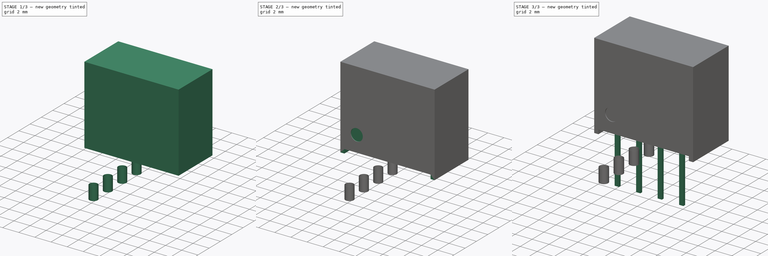
[diagram: build sequence overview — one tinted view per stage of 3, left to right]
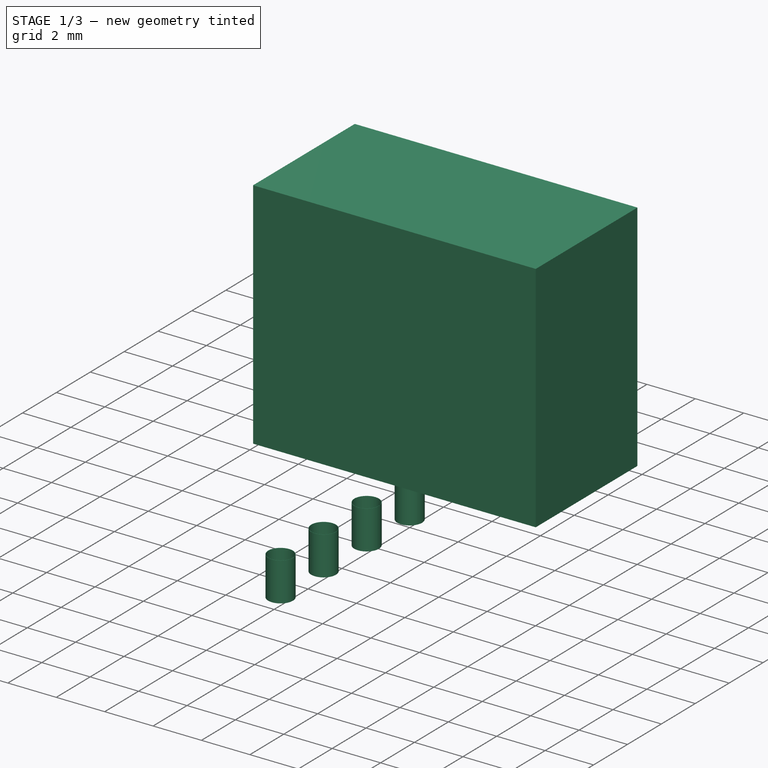
[diagram: stage 1 of 3 — iso view after this stage's code; geometry added in this stage tinted green]
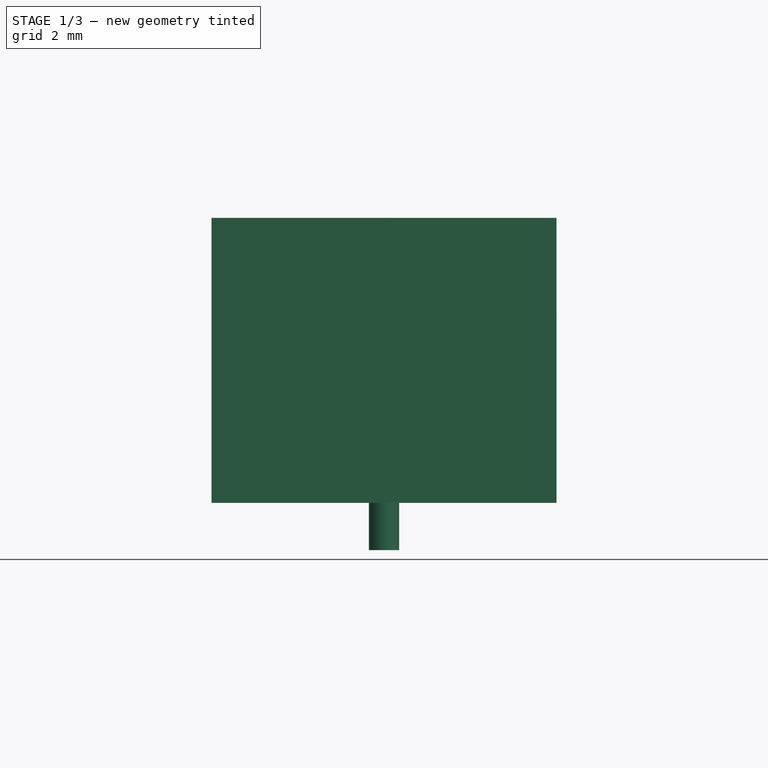
[diagram: stage 1 of 3 — front view after this stage's code; geometry added in this stage tinted green]
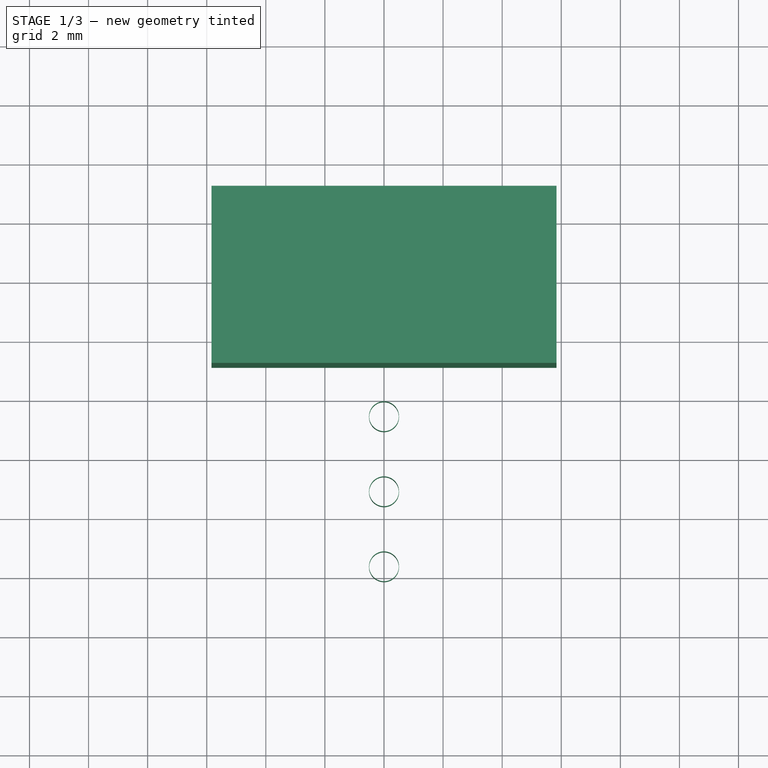
[diagram: stage 1 of 3 — top view after this stage's code; geometry added in this stage tinted green]
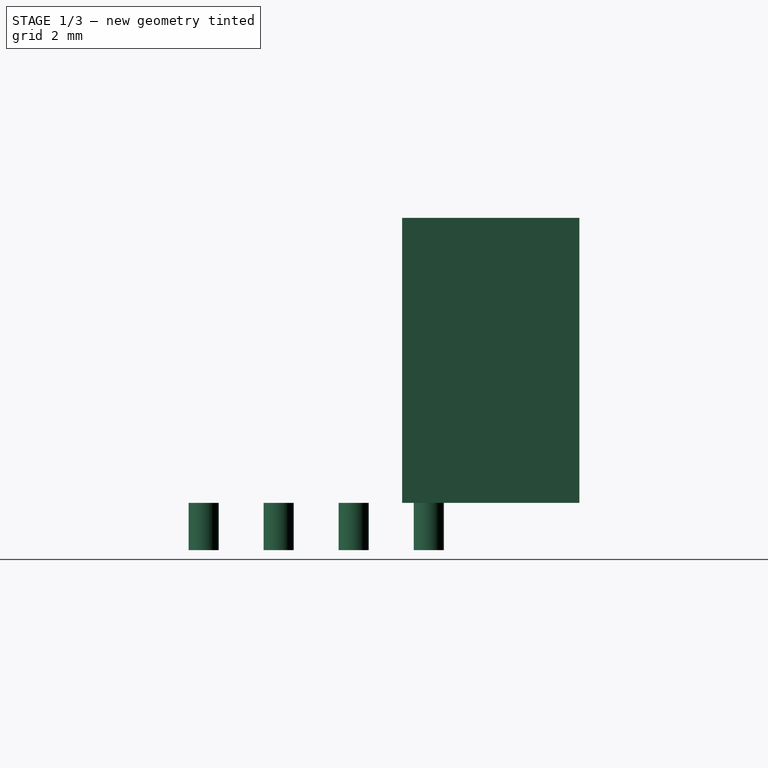
[diagram: stage 1 of 3 — right view after this stage's code; geometry added in this stage tinted green]
FCSTD DOCUMENT  (FreeCAD 1.0R39109 (Git))
Label: B0505S-1W
License: All rights reserved
LicenseURL: http://en.wikipedia.org/wiki/All_rights_reserved
objects: Part::Feature×11, Sketcher::SketchObject×7, PartDesign::Pad×3, PartDesign::Mirrored×1, PartDesign::Pocket×1, PartDesign::LinearPattern×1, PartDesign::Body×1, Part::Compound×1, App::DocumentObjectGroup×1
note: 43 computed .brp shape members not serialized (recipe doc carries the construction recipe); baked Part::Feature solids carry a one-line shape summary decoded from their .brp

FEATURE [Sketcher::SketchObject] Sketch
  ArcFitTolerance = 1e-06
  AttachmentSupport = -> [XZ_Plane]
  FullyConstrained = true
  MakeInternals = false
  MapMode = 5
  Placement = pos=(0,0,0) rot=(1,0,0;1.5708rad)
  sketch-geometry (4):
    g0: LineSegment StartX=-5.84 StartY=0 StartZ=0 EndX=5.84 EndY=0 EndZ=0
    g1: LineSegment StartX=5.84 StartY=0 StartZ=0 EndX=5.84 EndY=9.65 EndZ=0
    g2: LineSegment StartX=5.84 StartY=9.65 StartZ=0 EndX=-5.84 EndY=9.65 EndZ=0
    g3: LineSegment StartX=-5.84 StartY=9.65 StartZ=0 EndX=-5.84 EndY=0 EndZ=0
  constraints (11):
    c: Coincident(g0,g1)
    c: Coincident(g1,g2)
    c: Coincident(g2,g3)
    c: Coincident(g3,g0)
    c: Horizontal(g0)
    c: Vertical(g1)
    c: Vertical(g3)
    c: PointOnObject(g0,g-1)
    c: DistanceX(g2,g2) = 11.68
    c: DistanceY(g3,g3) = 9.65
    c: Symmetric(g2,g1,g-2)
FEATURE [PartDesign::Pad] Pad
  Direction = (0,-1,2e-16)
  Length = 0.9
  Length2 = 5.1
  Placement = pos=(0,0,0) rot=(1,0,0;1.5708rad)
  Profile = -> Sketch
  ReferenceAxis = -> Sketch [N_Axis]
  Refine = true
  Suppressed = false
  Type = 4
  expr: Length2 = 6 - 0.9
FEATURE [PartDesign::Body] Body
  AllowCompound = false
  Group = -> [Sketch,Pad,Sketch001,Pad001,Mirrored,Sketch002,Pocket,Sketch003,Pad002,LinearPattern]
  Origin = -> Origin
  Placement = pos=(2.1,2.1,0) rot=(0,0,1;1.5708rad)
  Tip = -> LinearPattern
FEATURE [Part::Feature] anr_  label="drill_000"
  shape: bbox 1.02 x 1.02 x 1.6 mm, 4 faces (baked)
FEATURE [Part::Feature] anr_001  label="drill_001"
  shape: bbox 1.02 x 1.02 x 1.6 mm, 4 faces (baked)
FEATURE [Part::Feature] anr_002  label="drill_002"
  shape: bbox 1.02 x 1.02 x 1.6 mm, 4 faces (baked)
FEATURE [Part::Feature] anr_003  label="drill_003"
  shape: bbox 1.02 x 1.02 x 1.6 mm, 4 faces (baked)
FEATURE [Part::Compound] annulars  label="TH-Drills"
  Links = -> [anr_,anr_001,anr_002,anr_003]
FEATURE [Part::Feature] Shape001  label="topPads"
  Placement = pos=(0,0,-0.01) rot=(0,0,1;0rad)
  shape: bbox 1.5 x 9.12 x 0.01 mm, 23 faces, 4 solids (baked)
FEATURE [Part::Feature] Shape002  label="btmPads"
  Placement = pos=(0,0,-1.6) rot=(0,0,1;0rad)
  shape: bbox 1.5 x 9.12 x 0.01 mm, 23 faces, 4 solids (baked)
FEATURE [Part::Feature] Shape  label="F.SilkS_outline_"
  Placement = pos=(0,0,0.01) rot=(0,0,1;0rad)
  shape: bbox 6.74 x 12.42 x 2e-07 mm, 0 faces, 0 solids (baked)
FEATURE [Sketcher::SketchObject] _F_SilkS__sketch  label="F.SilkS_"
  ArcFitTolerance = 1e-06
  FullyConstrained = false
  MakeInternals = false
  Placement = pos=(0,0,0.01) rot=(0,0,1;0rad)
  sketch-geometry (6):
    g0: LineSegment StartX=-1.4 StartY=2.53 StartZ=0 EndX=0.6 EndY=2.53 EndZ=0
    g1: LineSegment StartX=-1.4 StartY=0.53 StartZ=0 EndX=-1.4 EndY=2.53 EndZ=0
    g2: LineSegment StartX=-1.02 StartY=2.15 StartZ=0 EndX=-1.02 EndY=-9.77 EndZ=0
    g3: LineSegment StartX=-1.02 StartY=2.15 StartZ=0 EndX=5.22 EndY=2.15 EndZ=0
    g4: LineSegment StartX=-1.02 StartY=-9.77 StartZ=0 EndX=5.22 EndY=-9.77 EndZ=0
    g5: LineSegment StartX=5.22 StartY=2.15 StartZ=0 EndX=5.22 EndY=-9.77 EndZ=0
FEATURE [Part::Feature] Shape003  label="F.CrtYd_outline_"
  Placement = pos=(0,0,0.01) rot=(0,0,1;0rad)
  shape: bbox 6.55 x 12.23 x 2e-07 mm, 0 faces, 0 solids (baked)
FEATURE [Sketcher::SketchObject] _F_CrtYd__sketch  label="F.CrtYd_"
  ArcFitTolerance = 1e-06
  FullyConstrained = false
  MakeInternals = false
  Placement = pos=(0,0,0.01) rot=(0,0,1;0rad)
  sketch-geometry (4):
    g0: LineSegment StartX=-1.15 StartY=2.28 StartZ=0 EndX=-1.15 EndY=-9.9 EndZ=0
    g1: LineSegment StartX=-1.15 StartY=2.28 StartZ=0 EndX=5.35 EndY=2.28 EndZ=0
    g2: LineSegment StartX=-1.15 StartY=-9.9 StartZ=0 EndX=5.35 EndY=-9.9 EndZ=0
    g3: LineSegment StartX=5.35 StartY=2.28 StartZ=0 EndX=5.35 EndY=-9.9 EndZ=0
FEATURE [Part::Feature] Shape004  label="F.Fab_outline_"
  Placement = pos=(0,0,0.01) rot=(0,0,1;0rad)
  shape: bbox 6.1 x 11.78 x 2e-07 mm, 0 faces, 0 solids (baked)
FEATURE [Sketcher::SketchObject] _F_Fab__sketch  label="F.Fab_"
  ArcFitTolerance = 1e-06
  FullyConstrained = false
  MakeInternals = false
  Placement = pos=(0,0,0.01) rot=(0,0,1;0rad)
  sketch-geometry (5):
    g0: LineSegment StartX=-0.9 StartY=1.03 StartZ=0 EndX=0.1 EndY=2.03 EndZ=0
    g1: LineSegment StartX=-0.9 StartY=-9.65 StartZ=0 EndX=-0.9 EndY=1.03 EndZ=0
    g2: LineSegment StartX=0.1 StartY=2.03 StartZ=0 EndX=5.1 EndY=2.03 EndZ=0
    g3: LineSegment StartX=5.1 StartY=2.03 StartZ=0 EndX=5.1 EndY=-9.65 EndZ=0
    g4: LineSegment StartX=5.1 StartY=-9.65 StartZ=0 EndX=-0.9 EndY=-9.65 EndZ=0
FEATURE [Part::Feature] PCB
  shape: bbox 10.25 x 18.77 x 1.58 mm, 14 faces (baked)
FEATURE [App::DocumentObjectGroup] Group  label="Converter_DCDC_TRACO_TEA1-xxxx_THT-fp"
  Group = -> [Shape001,Shape002,annulars,_F_SilkS__sketch,Shape,_F_CrtYd__sketch,Shape003,_F_Fab__sketch,Shape004,PCB]
FEATURE [Part::Feature] Shape043  label="B0505S-1W"
  shape: bbox 6 x 11.68 x 15.65 mm, 32 faces (baked)
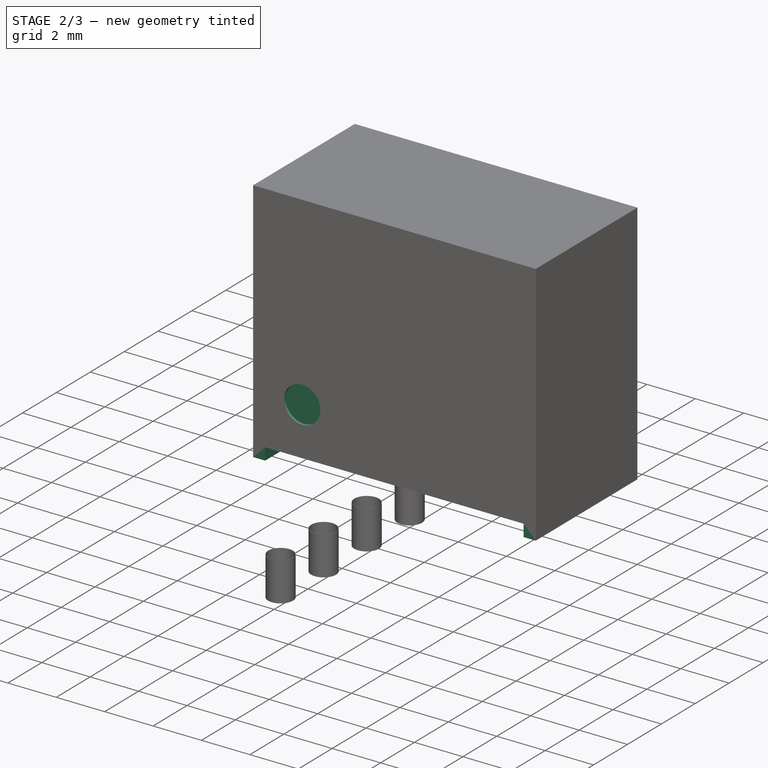
[diagram: stage 2 of 3 — iso view after this stage's code; geometry added in this stage tinted green]
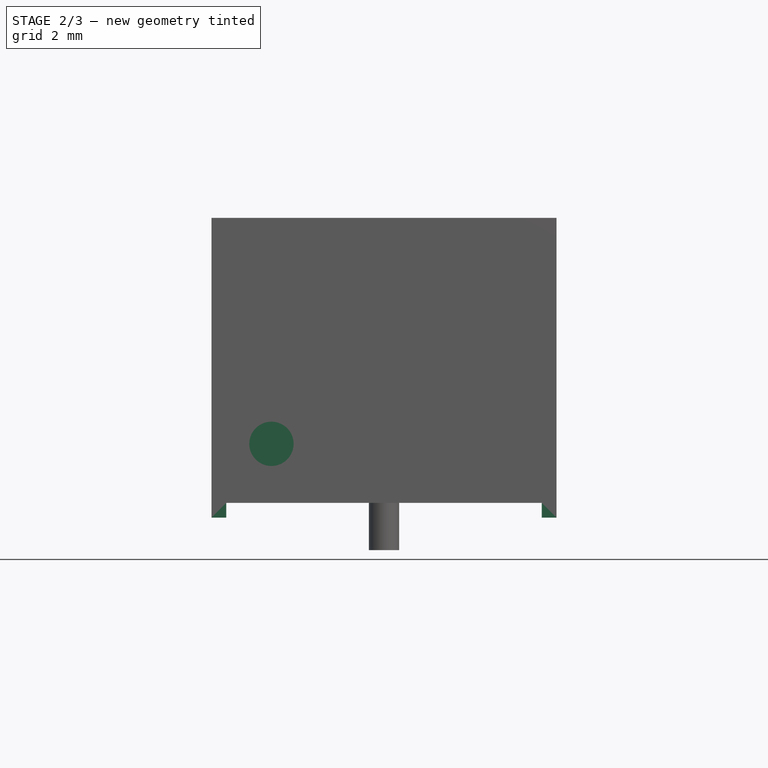
[diagram: stage 2 of 3 — front view after this stage's code; geometry added in this stage tinted green]
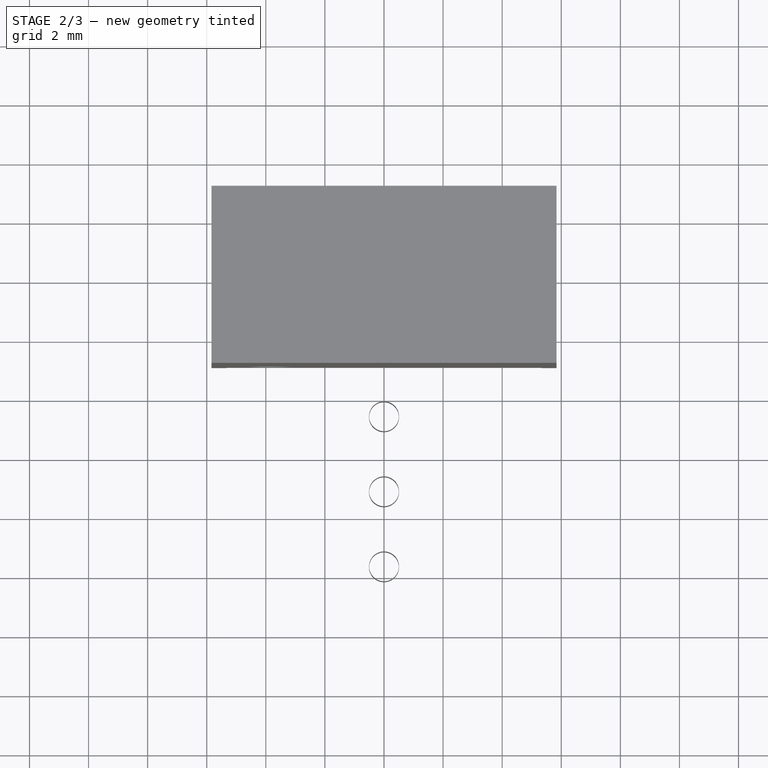
[diagram: stage 2 of 3 — top view after this stage's code; geometry added in this stage tinted green]
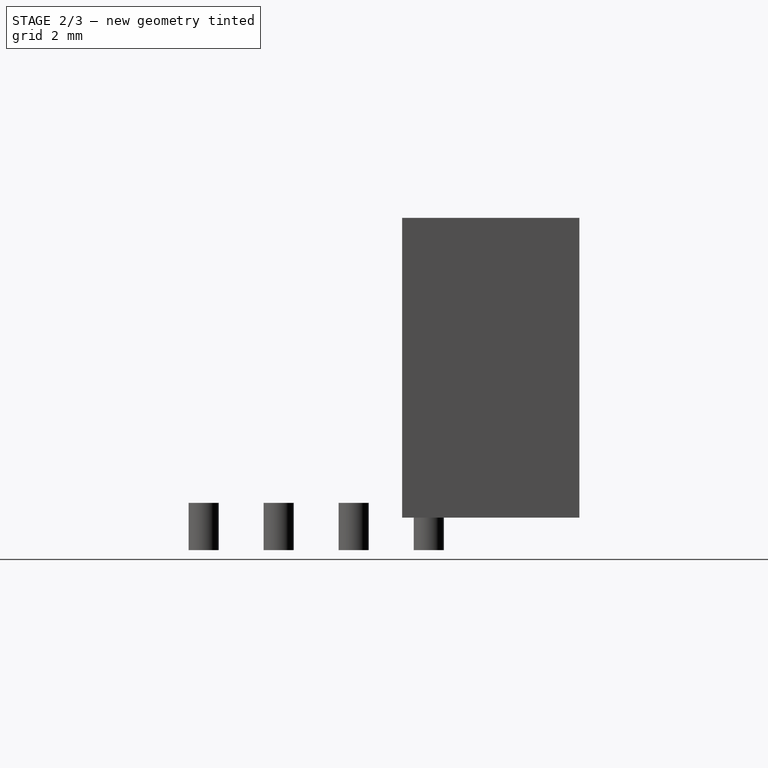
[diagram: stage 2 of 3 — right view after this stage's code; geometry added in this stage tinted green]
FEATURE [Sketcher::SketchObject] Sketch001
  ArcFitTolerance = 1e-06
  AttachmentSupport = -> [Pad]
  ExternalGeometry = -> [Pad]
  FullyConstrained = true
  MakeInternals = false
  MapMode = 5
  Placement = pos=(0,0,0) rot=(1,0,0;3.14159rad)
  sketch-geometry (4):
    g0: LineSegment StartX=-5.84 StartY=0.9 StartZ=0 EndX=-5.84 EndY=-5.1 EndZ=0
    g1: LineSegment StartX=-5.84 StartY=-5.1 StartZ=0 EndX=-5.34 EndY=-5.1 EndZ=0
    g2: LineSegment StartX=-5.34 StartY=-5.1 StartZ=0 EndX=-5.34 EndY=0.9 EndZ=0
    g3: LineSegment StartX=-5.34 StartY=0.9 StartZ=0 EndX=-5.84 EndY=0.9 EndZ=0
  constraints (10):
    c: Coincident(g0,g1)
    c: Coincident(g1,g2)
    c: Coincident(g2,g3)
    c: Coincident(g3,g0)
    c: Vertical(g2)
    c: Horizontal(g1)
    c: Horizontal(g3)
    c: Coincident(g0,g-3)
    c: Coincident(g0,g-3)
    c: DistanceX(g3,g3) = 0.5
FEATURE [PartDesign::Pad] Pad001
  BaseFeature = -> Pad
  Direction = (0,0,-1)
  Length = 0.5
  Length2 = 10
  Placement = pos=(0,0,0) rot=(1,0,0;1.5708rad)
  Profile = -> Sketch001
  ReferenceAxis = -> Sketch001 [N_Axis]
  Refine = true
  Suppressed = false
  Type = 0
FEATURE [PartDesign::Mirrored] Mirrored
  BaseFeature = -> Pad001
  MirrorPlane = -> Sketch001 [V_Axis]
  Originals = -> [Pad001]
  Placement = pos=(0,0,0) rot=(1,0,0;1.5708rad)
  Refine = true
  Suppressed = false
  TransformMode = 0
FEATURE [Sketcher::SketchObject] Sketch002
  ArcFitTolerance = 1e-06
  AttachmentSupport = -> [Mirrored]
  FullyConstrained = true
  MakeInternals = false
  MapMode = 5
  Placement = pos=(0,-0.9,2e-16) rot=(1,0,0;1.5708rad)
  expr: Constraints[2] = 7.62 / 2
  sketch-geometry (1):
    g0: Circle CenterX=-3.81 CenterY=2 CenterZ=0 NormalX=0 NormalY=0 NormalZ=1 AngleXU=0 Radius=0.75
  constraints (3):
    c: Diameter(g0) = 1.5
    c: DistanceY(g-1,g0) = 2
    c: DistanceX(g0,g-1) = 3.81
FEATURE [PartDesign::Pocket] Pocket
  BaseFeature = -> Mirrored
  Direction = (0,1,-2e-16)
  Length = 0.1
  Length2 = 5
  Placement = pos=(0,0,0) rot=(1,0,0;1.5708rad)
  Profile = -> Sketch002
  ReferenceAxis = -> Sketch002 [N_Axis]
  Refine = true
  Suppressed = false
  Type = 0
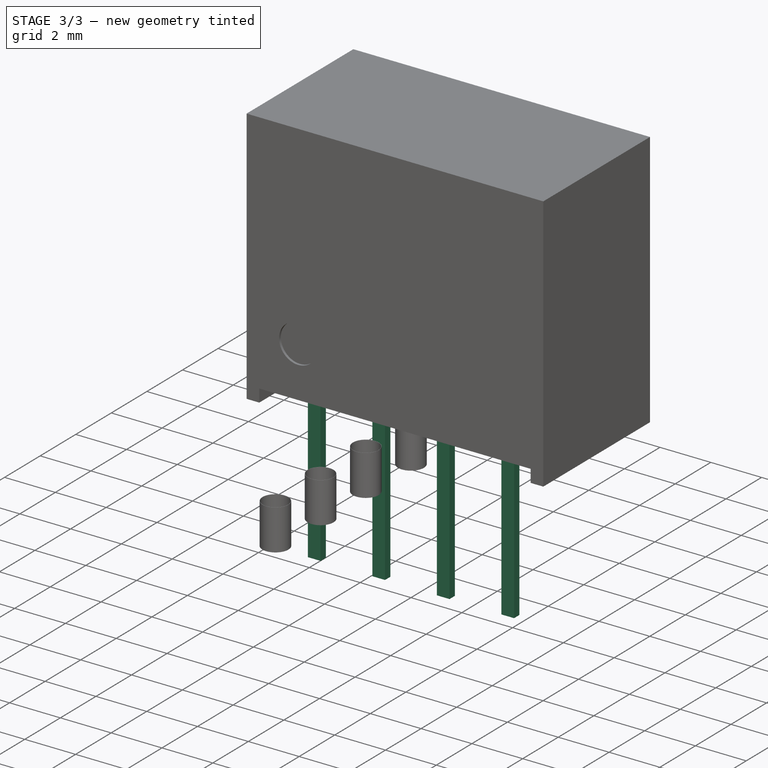
[diagram: stage 3 of 3 — iso view after this stage's code; geometry added in this stage tinted green]
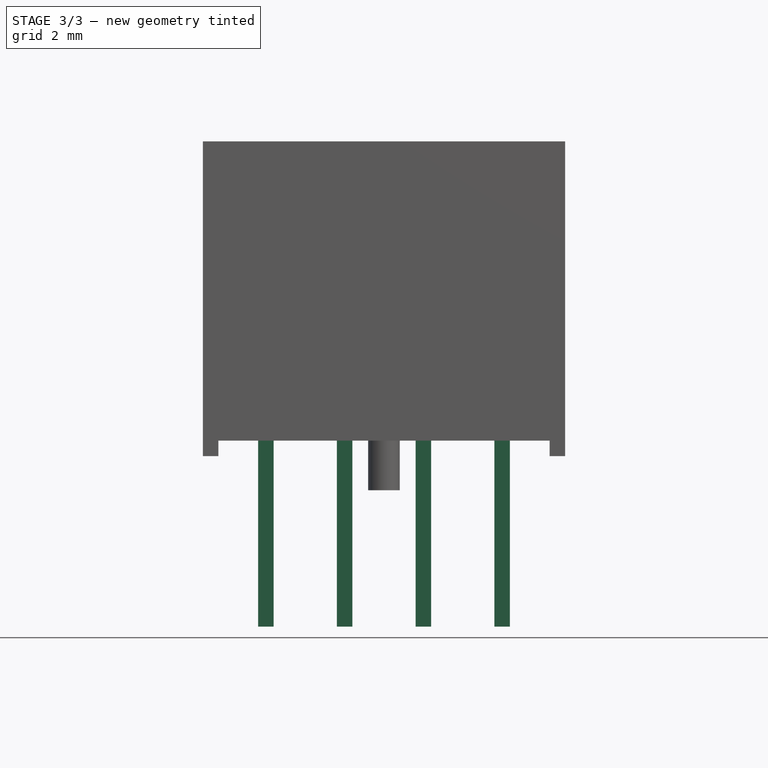
[diagram: stage 3 of 3 — front view after this stage's code; geometry added in this stage tinted green]
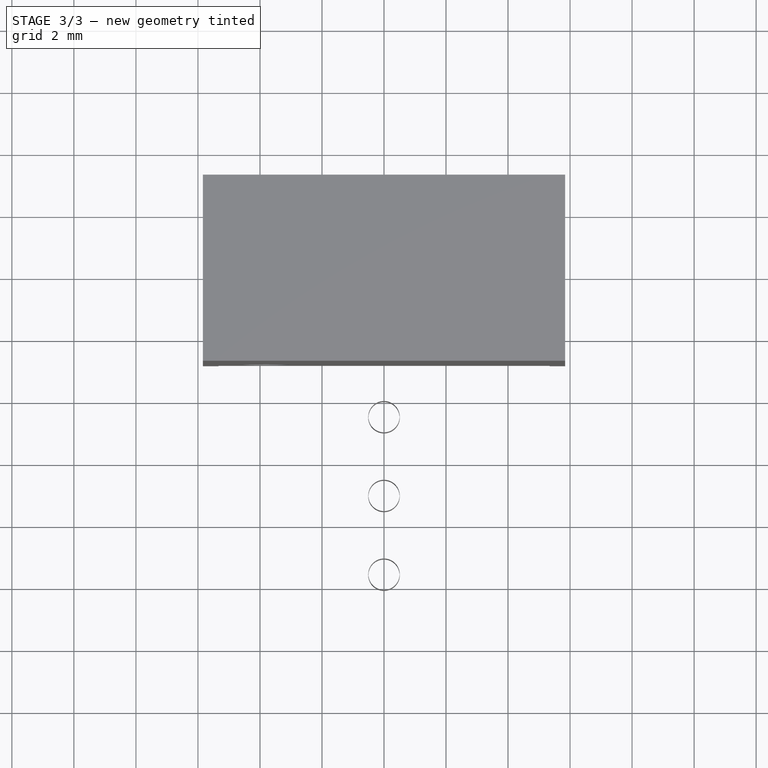
[diagram: stage 3 of 3 — top view after this stage's code; geometry added in this stage tinted green]
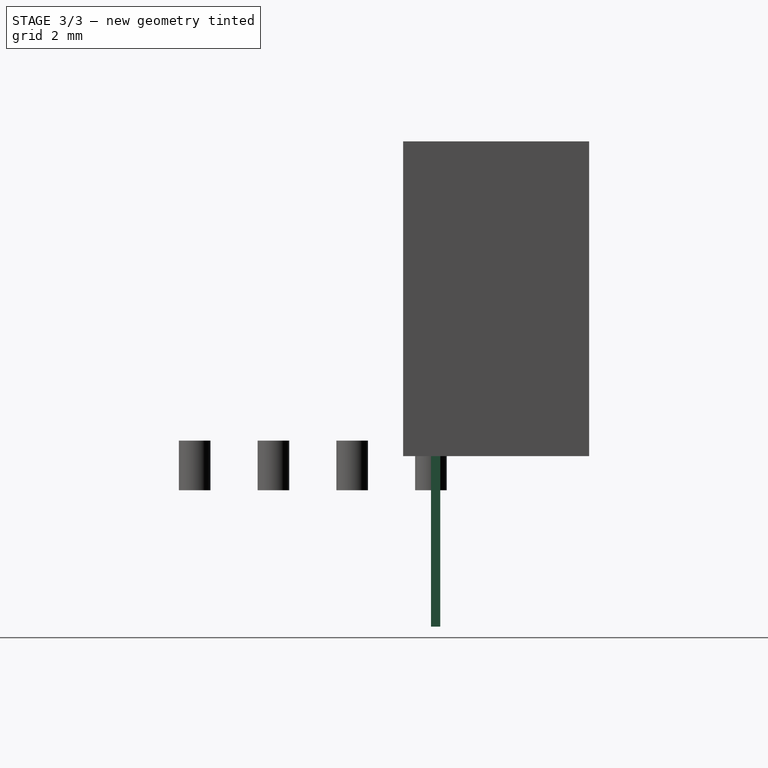
[diagram: stage 3 of 3 — right view after this stage's code; geometry added in this stage tinted green]
FEATURE [Sketcher::SketchObject] Sketch003
  ArcFitTolerance = 1e-06
  AttachmentSupport = -> [Pocket]
  FullyConstrained = true
  MakeInternals = false
  MapMode = 5
  Placement = pos=(0,0,0) rot=(1,0,0;3.14159rad)
  expr: Constraints[13] = 2.54 + 2.54 / 2
  sketch-geometry (5):
    g0: LineSegment StartX=-4.06 StartY=0 StartZ=0 EndX=-4.06 EndY=-0.3 EndZ=0
    g1: LineSegment StartX=-4.06 StartY=-0.3 StartZ=0 EndX=-3.56 EndY=-0.3 EndZ=0
    g2: LineSegment StartX=-3.56 StartY=-0.3 StartZ=0 EndX=-3.56 EndY=0 EndZ=0
    g3: LineSegment StartX=-3.56 StartY=0 StartZ=0 EndX=-4.06 EndY=0 EndZ=0
    g4: LineSegment [constr] StartX=-3.81 StartY=0 StartZ=0 EndX=-3.81 EndY=-0.3 EndZ=0
  constraints (14):
    c: Coincident(g0,g1)
    c: Coincident(g1,g2)
    c: Coincident(g2,g3)
    c: Coincident(g3,g0)
    c: Vertical(g0)
    c: Vertical(g2)
    c: Horizontal(g1)
    c: Horizontal(g3)
    c: PointOnObject(g0,g-1)
    c: DistanceX(g3,g3) = 0.5
    c: DistanceY(g0,g0) = 0.3
    c: Symmetric(g3,g3,g4)
    c: Symmetric(g1,g1,g4)
    c: DistanceX(g4,g-1) = 3.81
FEATURE [PartDesign::Pad] Pad002
  BaseFeature = -> Pocket
  Direction = (0,0,-1)
  Length = 6
  Length2 = 10
  Placement = pos=(0,0,0) rot=(1,0,0;1.5708rad)
  Profile = -> Sketch003
  ReferenceAxis = -> Sketch003 [N_Axis]
  Refine = true
  Suppressed = false
  Type = 0
FEATURE [PartDesign::LinearPattern] LinearPattern
  BaseFeature = -> Pad002
  Direction = -> Sketch003 [H_Axis]
  Length = 7.62
  Mode = 0
  Occurrences = 4
  Offset = 2.54
  Originals = -> [Pad002]
  Placement = pos=(0,0,0) rot=(1,0,0;1.5708rad)
  Refine = true
  Suppressed = false
  TransformMode = 0
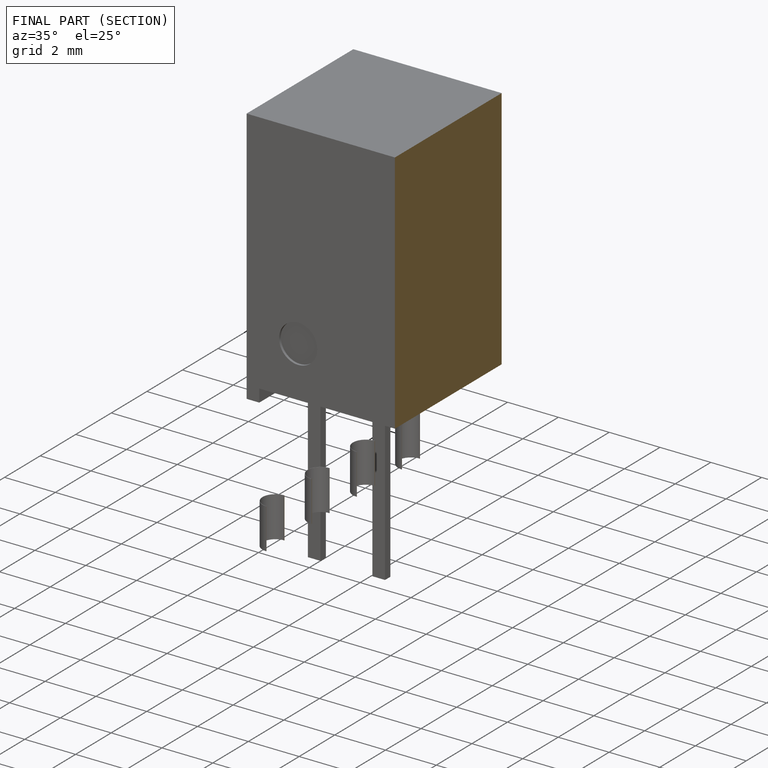
[diagram: finished part — half-section view (interior)]
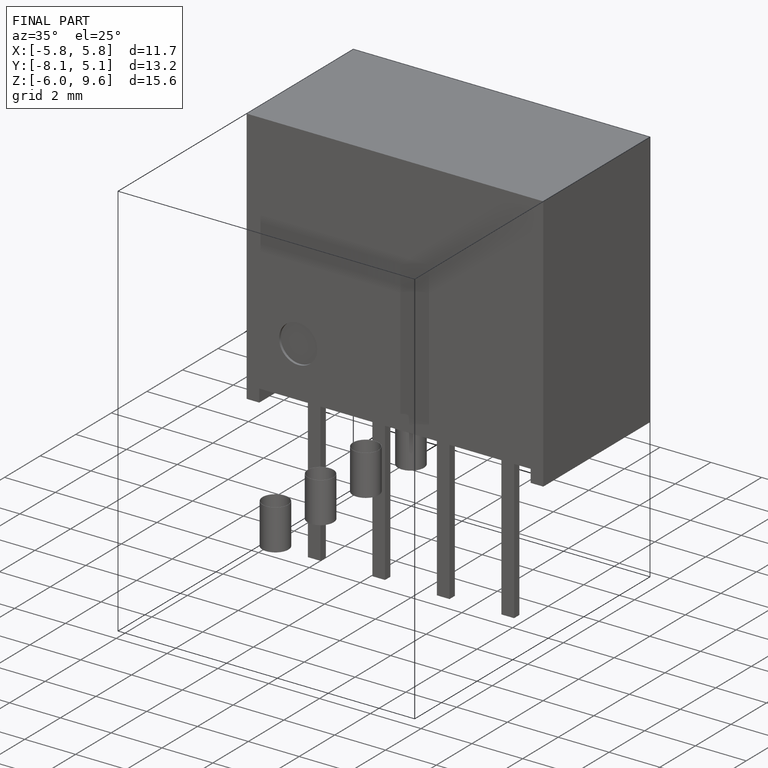
[diagram: finished part — iso view with bounding-box wireframe]
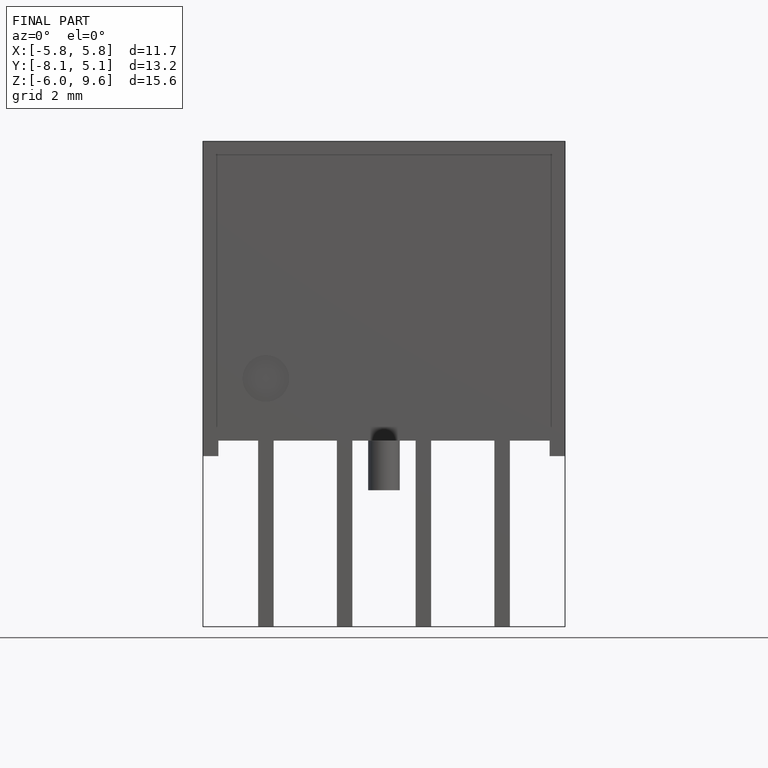
[diagram: finished part — front view with bounding-box wireframe]
